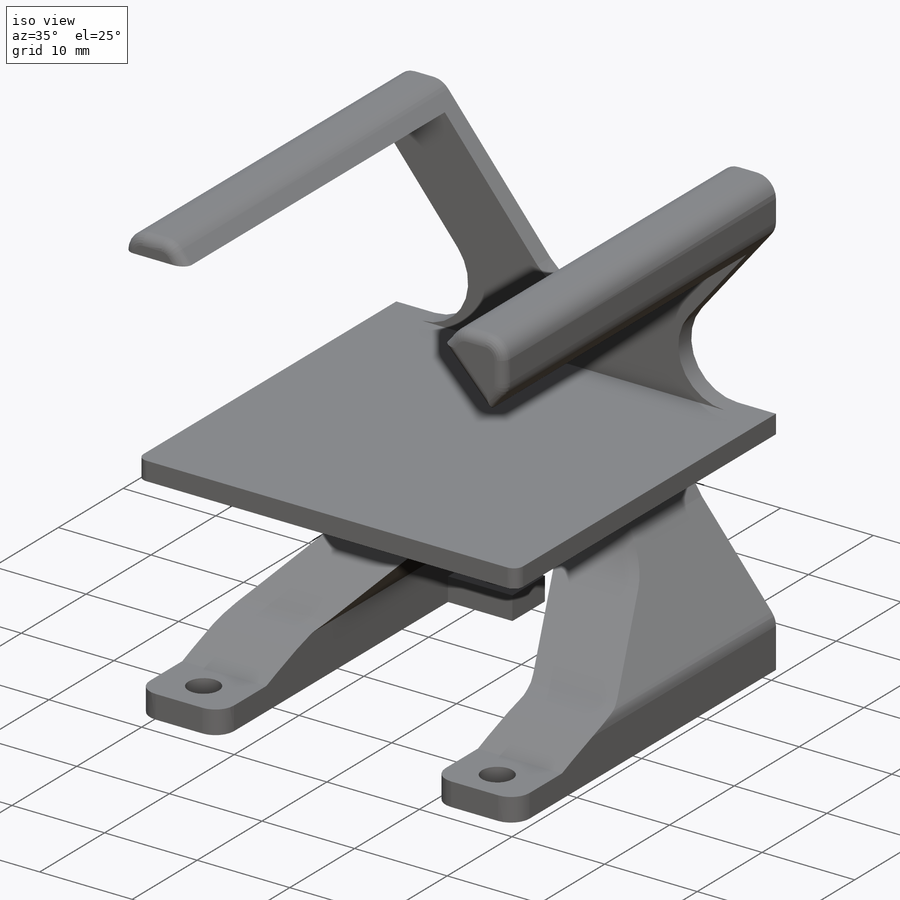
[diagram: iso view]
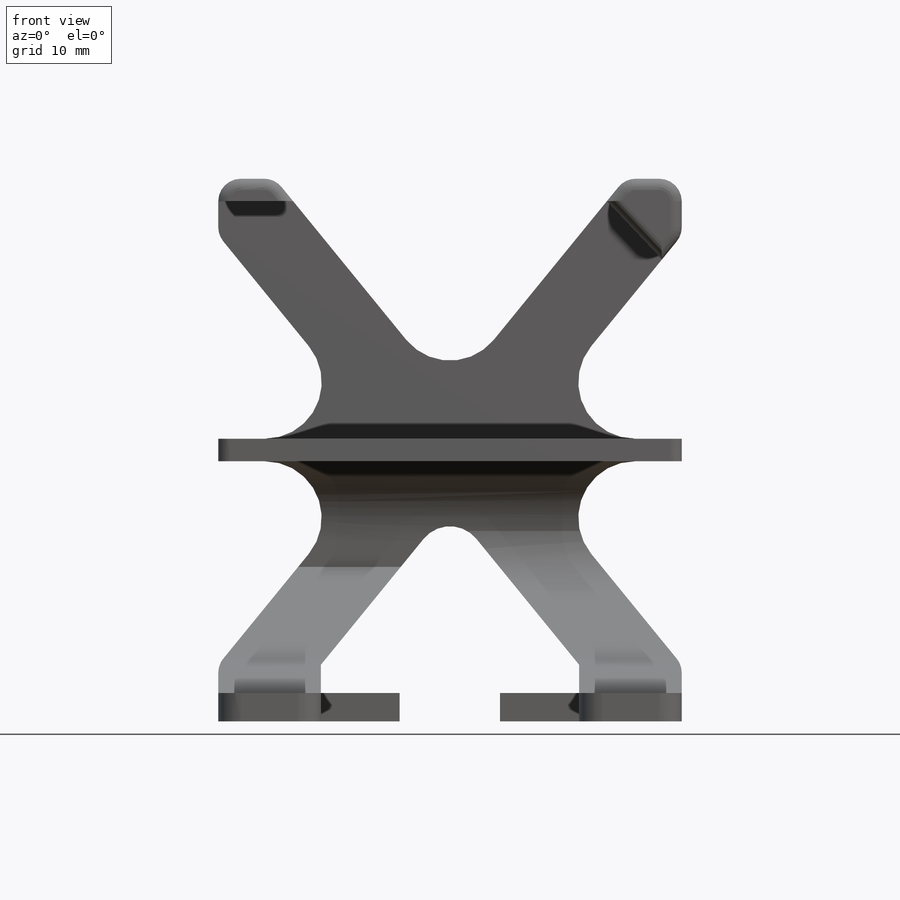
[diagram: front view]
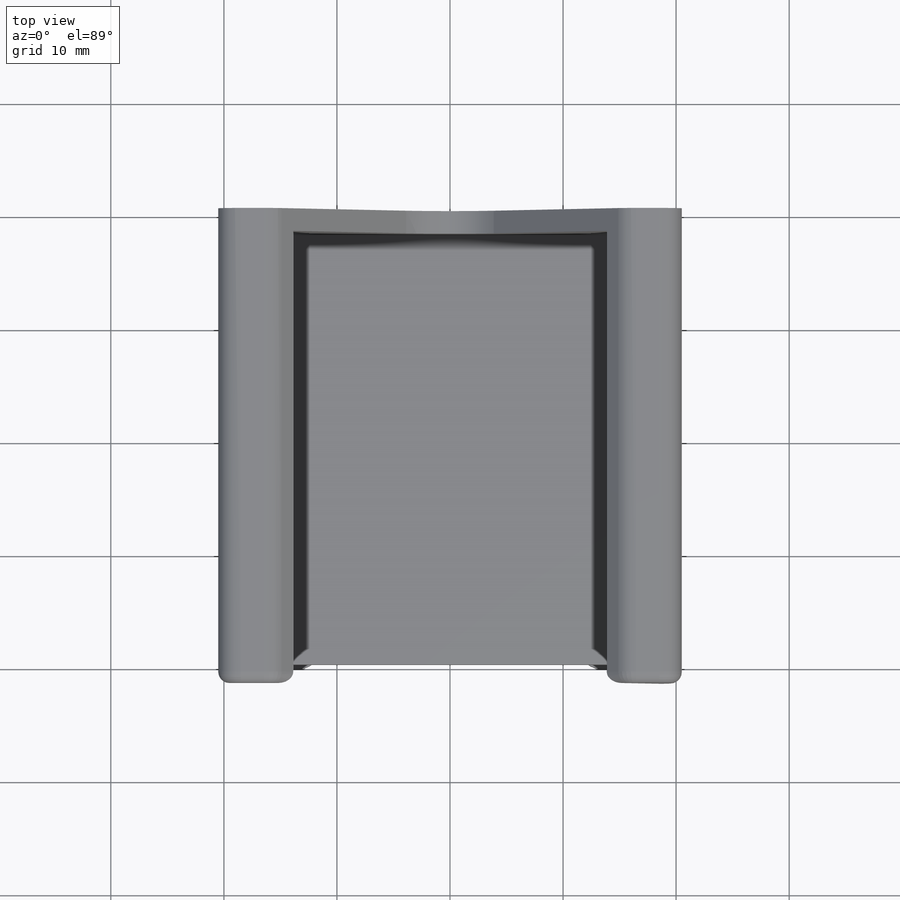
[diagram: top view]
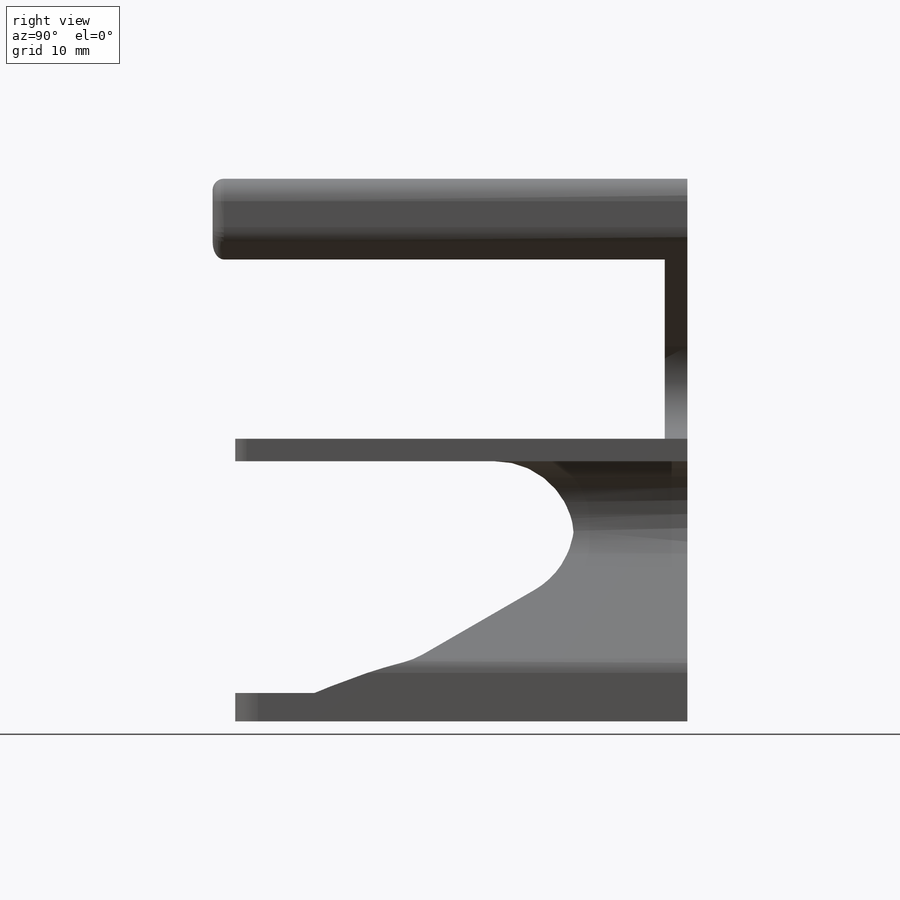
[diagram: right view]
SOLIDWORKS PART (.sldprt)
format: sldprt  version: not decoded by parser v0  size: 600,576 bytes
history: native  units: mm
features: sketch x10, fillet x9, cut_extrude x6, extrude x4, material x1, chamfer x1 (+13 scaffold rows collapsed)
feature tree (44):
  scaffold x13  (default folders/planes/origin — collapsed)
  material  "Material <not specified>"
  sketch  "Sketch1"  dims[c1.D1=48.0mm c1.D2=5.0mm c1.D3=5.0mm c1.D4=5.0mm c1.D5=5.0mm c1.D6=5.0mm c1.D7=5.0mm c1.D8=5.0mm c1.D9=5.0mm c1.D10=0.0mm c1.D11=0.0mm c1.D12=0.0mm c1.D13=5.0mm c1.D14=5.0mm c1.D15=5.0mm c1.D16=0.0mm c1.D17=0.0mm c1.D18=5.0mm c2.D1=48.0mm c2.D2=41.0mm c2.D3=5.0mm c2.D4=5.0mm c2.D5=5.0mm c2.D6=5.0mm c2.D7=5.0mm c2.D8=5.0mm c2.D9=5.0mm c2.D10=5.0mm c3.D9=5.0mm c3.D10=5.0mm c3.D11=0.0mm c3.D12=5.0mm c3.D13=0.0mm c3.D14=1.5mm c4.D10=5.0mm c4.D13=0.0mm c4.D14=5.0mm c4.D15=5.0mm c4.D16=2.0mm c4.D17=23.0mm]
  extrude  "Boss-Extrude1"  Depth=40mm
  sketch  "Sketch2"  dims[D1=37.5mm D2=1.75mm D3=2.0mm]
  cut_extrude  "Cut-Extrude1"  Depth=38mm
  sketch  "Sketch4"  dims[D1=30.0mm]
  cut_extrude  "Cut-Extrude2"  Depth=100mm
  chamfer  "Chamfer1"  Distance=15mm Angle=30deg
  fillet  "Fillet1"  Radius=7mm
  sketch  "Sketch5"
  extrude  "Boss-Extrude3"  Depth=2mm
  fillet  "Fillet4"  Radius=2mm
  fillet  "Fillet5"  Radius=1mm
  fillet  "Fillet6"  Radius=5mm
  fillet  "Fillet7"  Radius=3mm
  fillet  "Fillet8"  Radius=1mm
  sketch  "Sketch6"
  extrude  "Boss-Extrude4"  [1 undecoded]
  sketch  "Sketch7"  dims[D1=7.0mm D2=~6.960275mm]
  extrude  "Boss-Extrude5"  Depth=5mm
  sketch  "Sketch8"  dims[D1=7.0mm]
  cut_extrude  "Cut-Extrude3"  Depth=100mm
  fillet  "Fillet9"  Radius=50mm
  sketch  "Sketch9"  dims[D1=~0.843325mm]
  cut_extrude  "Cut-Extrude4"  Depth=100mm
  sketch  "Sketch10"  dims[c1.D1=~0.77528mm c1.D2=~1.456969mm c2.D1=3.0mm c2.D2=3.0mm]
  cut_extrude  "Cut-Extrude5"  Depth=100mm
  fillet  "Fillet11"  Radius=2mm
  fillet  "Fillet12"  Radius=2mm
  sketch  "Sketch11"
  cut_extrude  "Cut-Extrude6"  Depth=200mm
decode coverage: 26 of 30 modeling features carry decoded parameters
note: ~ marks probable driven/reference dimensions
note: 1 parameter value undecoded
note: suppression state not decoded; provenance and decode notes live in map.json
